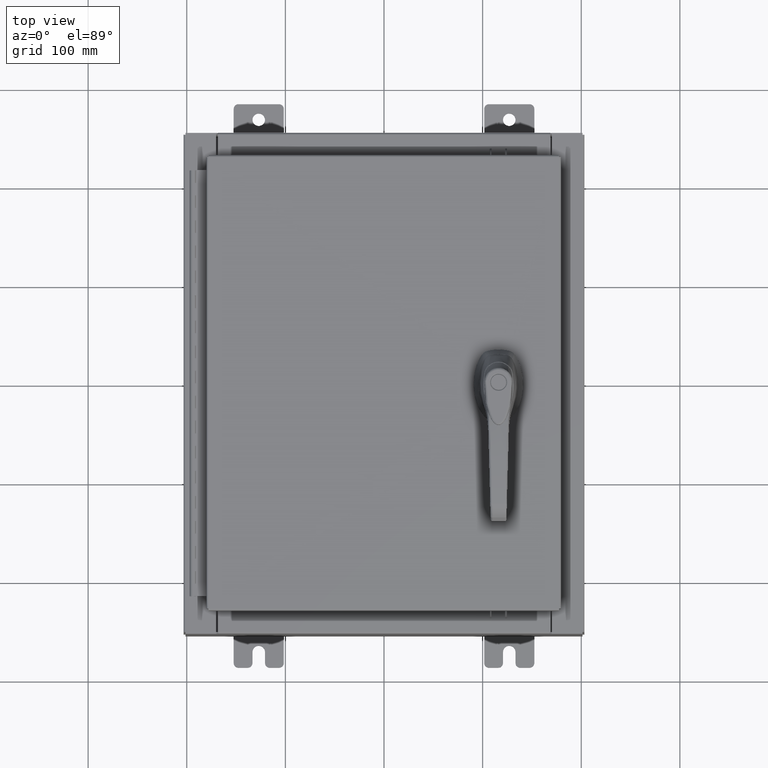
[diagram: clean part render]
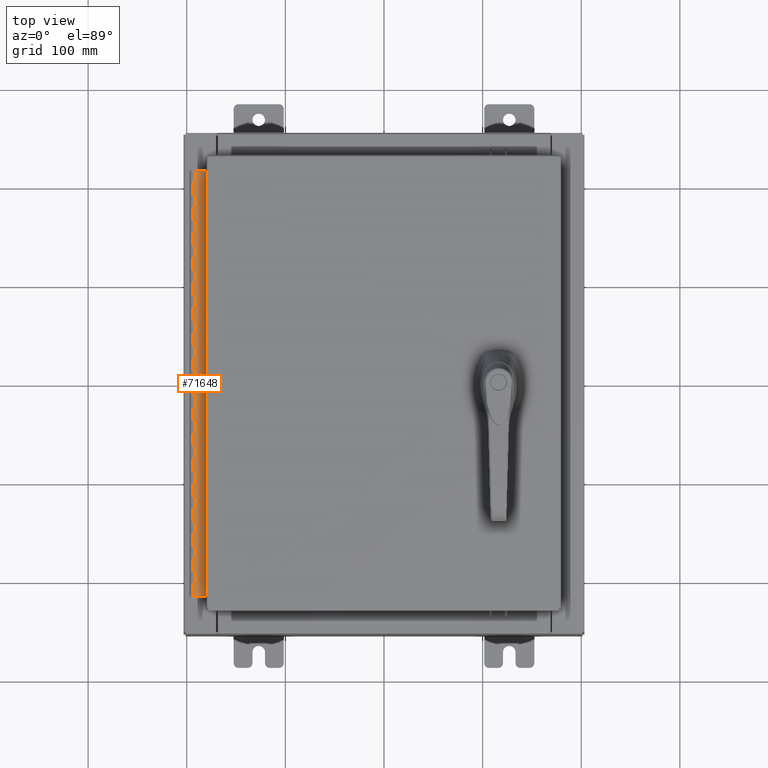
[diagram: same view with one face highlighted and labeled with its STEP entity id]
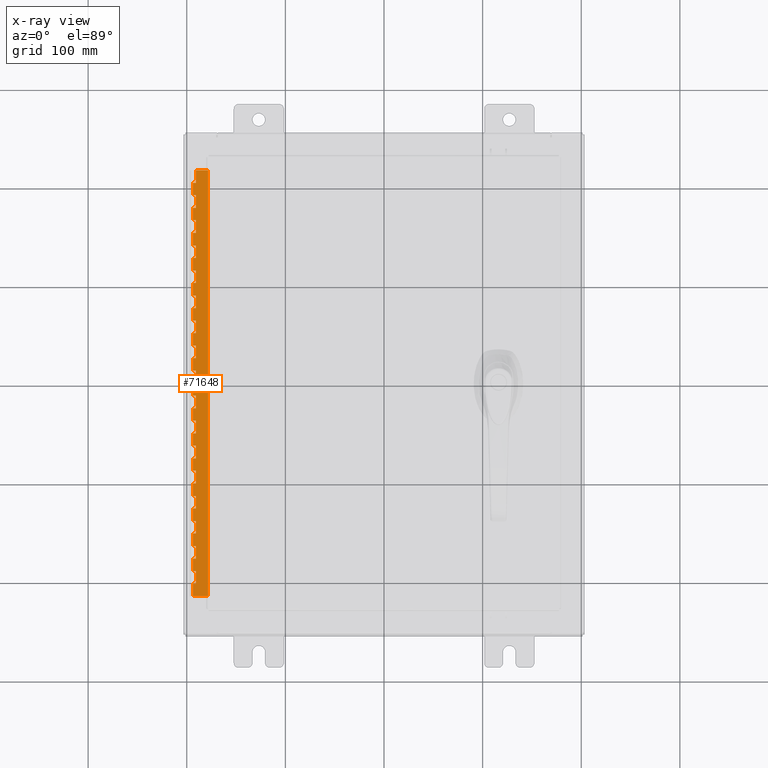
[diagram: x-ray of the same camera — body ghosted, the highlighted face saturated]
A machine part, top view. The second image highlights one B-rep face of the part: STEP entity #71648.
The next image is the same camera in x-ray: the body ghosted, the highlighted face saturated — about 0% of this face is hidden behind the body in this view.
In plain terms, the highlighted planar face has unit normal (-0, -0, 1).
Its self-contained STEP definition (entity closure, byte-faithful):
#47 = LINE ( 'NONE', #97177, #22506 ) ;
#52 = CARTESIAN_POINT ( 'NONE',  ( -0.6869999999999973900, 0.8004999999999995500, -16.00000000000000000 ) ) ;
#144 = LINE ( 'NONE', #7734, #81935 ) ;
#173 = EDGE_CURVE ( 'NONE', #30882, #21122, #80404, .T. ) ;
#182 = CARTESIAN_POINT ( 'NONE',  ( -0.6869999999999978300, 0.6754999999999996600, -17.00000000000000000 ) ) ;
#255 = VECTOR ( 'NONE', #53296, 39.37007874015748100 ) ;
#319 = CARTESIAN_POINT ( 'NONE',  ( -0.6869999999999973900, 0.8004999999999995500, -9.500000000000000000 ) ) ;
#684 = EDGE_CURVE ( 'NONE', #3069, #19853, #53909, .T. ) ;
#822 = VECTOR ( 'NONE', #3573, 39.37007874015748100 ) ;
#826 = LINE ( 'NONE', #46279, #105073 ) ;
#1057 = CARTESIAN_POINT ( 'NONE',  ( -0.6869999999999982800, 0.5504999999999997700, -9.000000000000000000 ) ) ;
#1175 = LINE ( 'NONE', #72460, #65784 ) ;
#1570 = DIRECTION ( 'NONE',  ( 0.0000000000000000000, -0.0000000000000000000, -1.000000000000000000 ) ) ;
#2057 = VERTEX_POINT ( 'NONE', #35083 ) ;
#2121 = EDGE_CURVE ( 'NONE', #48176, #21186, #80214, .T. ) ;
#2126 = VECTOR ( 'NONE', #15982, 39.37007874015748100 ) ;
#2927 = DIRECTION ( 'NONE',  ( -3.389037039080723100E-015, -1.000000000000000000, 0.0000000000000000000 ) ) ;
#3069 = VERTEX_POINT ( 'NONE', #93607 ) ;
#3105 = ORIENTED_EDGE ( 'NONE', *, *, #37503, .F. ) ;
#3153 = VERTEX_POINT ( 'NONE', #35682 ) ;
#3228 = VECTOR ( 'NONE', #17721, 39.37007874015748100 ) ;
#3507 = CARTESIAN_POINT ( 'NONE',  ( -0.6869999999999978300, 0.6754999999999996600, -17.00000000000000000 ) ) ;
#3534 = DIRECTION ( 'NONE',  ( -3.389037039080723100E-015, -1.000000000000000000, 0.0000000000000000000 ) ) ;
#3573 = DIRECTION ( 'NONE',  ( 3.389037039080723100E-015, 1.000000000000000000, -0.0000000000000000000 ) ) ;
#4205 = DIRECTION ( 'NONE',  ( 0.0000000000000000000, 0.0000000000000000000, 1.000000000000000000 ) ) ;
#4481 = VERTEX_POINT ( 'NONE', #25479 ) ;
#5023 = ORIENTED_EDGE ( 'NONE', *, *, #55852, .F. ) ;
#5039 = VERTEX_POINT ( 'NONE', #100743 ) ;
#5045 = CARTESIAN_POINT ( 'NONE',  ( -0.6869999999999982800, 0.5504999999999997700, -10.50000000000000000 ) ) ;
#5246 = DIRECTION ( 'NONE',  ( 0.0000000000000000000, 0.0000000000000000000, 1.000000000000000000 ) ) ;
#5381 = CARTESIAN_POINT ( 'NONE',  ( -0.6869999999999982800, 0.5504999999999997700, -10.00000000000000000 ) ) ;
#5386 = EDGE_CURVE ( 'NONE', #25312, #22837, #53398, .T. ) ;
#5557 = VERTEX_POINT ( 'NONE', #91435 ) ;
#5804 = EDGE_CURVE ( 'NONE', #65741, #2057, #59946, .T. ) ;
#5836 = VECTOR ( 'NONE', #39153, 39.37007874015748100 ) ;
#5842 = LINE ( 'NONE', #51197, #3228 ) ;
#5902 = ORIENTED_EDGE ( 'NONE', *, *, #67990, .F. ) ;
#5998 = VERTEX_POINT ( 'NONE', #47102 ) ;
#6112 = LINE ( 'NONE', #71001, #822 ) ;
#6223 = LINE ( 'NONE', #3507, #93307 ) ;
#6224 = CARTESIAN_POINT ( 'NONE',  ( -0.6869999999999982800, 0.5504999999999997700, -11.50000000000000000 ) ) ;
#6429 = CARTESIAN_POINT ( 'NONE',  ( -0.6869999999999982800, 0.5504999999999997700, -2.000000000000000000 ) ) ;
#6629 = ORIENTED_EDGE ( 'NONE', *, *, #81378, .F. ) ;
#6748 = CARTESIAN_POINT ( 'NONE',  ( -0.6869999999999978300, 0.6754999999999996600, -5.500000000000000000 ) ) ;
#6836 = ORIENTED_EDGE ( 'NONE', *, *, #69578, .F. ) ;
#7418 = CARTESIAN_POINT ( 'NONE',  ( -0.6869999999999982800, 0.5504999999999997700, -8.000000000000000000 ) ) ;
#7476 = CARTESIAN_POINT ( 'NONE',  ( -0.6869999999999978300, 0.6754999999999996600, -17.00000000000000000 ) ) ;
#7521 = CARTESIAN_POINT ( 'NONE',  ( -0.6869999999999982800, 0.5504999999999997700, -2.500000000000000000 ) ) ;
#7583 = ORIENTED_EDGE ( 'NONE', *, *, #22789, .T. ) ;
#7734 = CARTESIAN_POINT ( 'NONE',  ( -0.6869999999999978300, 0.6754999999999996600, -17.00000000000000000 ) ) ;
#7920 = LINE ( 'NONE', #94806, #30362 ) ;
#7979 = VERTEX_POINT ( 'NONE', #46559 ) ;
#7988 = VECTOR ( 'NONE', #23017, 39.37007874015748100 ) ;
#8086 = CARTESIAN_POINT ( 'NONE',  ( -0.6869999999999973900, 0.8004999999999995500, -4.000000000000000000 ) ) ;
#8297 = VECTOR ( 'NONE', #78502, 39.37007874015748100 ) ;
#8391 = CARTESIAN_POINT ( 'NONE',  ( -0.6869999999999973900, 0.8004999999999995500, -2.500000000000000000 ) ) ;
#8474 = LINE ( 'NONE', #11161, #92892 ) ;
#8556 = DIRECTION ( 'NONE',  ( 3.389037039080723100E-015, 1.000000000000000000, -0.0000000000000000000 ) ) ;
#8589 = ORIENTED_EDGE ( 'NONE', *, *, #86606, .F. ) ;
#8602 = LINE ( 'NONE', #22561, #93021 ) ;
#8695 = DIRECTION ( 'NONE',  ( 0.0000000000000000000, 0.0000000000000000000, 1.000000000000000000 ) ) ;
#9291 = LINE ( 'NONE', #73083, #73894 ) ;
#9358 = ORIENTED_EDGE ( 'NONE', *, *, #80774, .T. ) ;
#9398 = VECTOR ( 'NONE', #90669, 39.37007874015748100 ) ;
#10118 = ORIENTED_EDGE ( 'NONE', *, *, #684, .F. ) ;
#10228 = EDGE_CURVE ( 'NONE', #93503, #77988, #25179, .T. ) ;
#10332 = ORIENTED_EDGE ( 'NONE', *, *, #45067, .T. ) ;
#10361 = EDGE_CURVE ( 'NONE', #72711, #104111, #64711, .T. ) ;
#10604 = ORIENTED_EDGE ( 'NONE', *, *, #15381, .F. ) ;
#10657 = CARTESIAN_POINT ( 'NONE',  ( -0.6869999999999982800, 0.5504999999999997700, -10.50000000000000000 ) ) ;
#10686 = EDGE_CURVE ( 'NONE', #77988, #28669, #93768, .T. ) ;
#10761 = CARTESIAN_POINT ( 'NONE',  ( -0.6869999999999978300, 0.6754999999999996600, -6.499999999999999100 ) ) ;
#10994 = CARTESIAN_POINT ( 'NONE',  ( -0.6869999999999973900, 0.8004999999999995500, -2.000000000000000000 ) ) ;
#11161 = CARTESIAN_POINT ( 'NONE',  ( -0.6869999999999982800, 0.5504999999999997700, -1.499999999999999800 ) ) ;
#11277 = DIRECTION ( 'NONE',  ( 0.0000000000000000000, 0.0000000000000000000, 1.000000000000000000 ) ) ;
#11766 = VECTOR ( 'NONE', #29520, 39.37007874015748100 ) ;
#12119 = VERTEX_POINT ( 'NONE', #62263 ) ;
#12715 = EDGE_CURVE ( 'NONE', #12119, #20681, #1175, .T. ) ;
#12751 = VECTOR ( 'NONE', #65247, 39.37007874015748100 ) ;
#12788 = VERTEX_POINT ( 'NONE', #38906 ) ;
#12859 = VECTOR ( 'NONE', #44209, 39.37007874015748100 ) ;
#12912 = ORIENTED_EDGE ( 'NONE', *, *, #89480, .F. ) ;
#12917 = CARTESIAN_POINT ( 'NONE',  ( -0.6869999999999982800, 0.5504999999999997700, -0.5000000000000000000 ) ) ;
#12961 = VECTOR ( 'NONE', #26973, 39.37007874015748100 ) ;
#13172 = CARTESIAN_POINT ( 'NONE',  ( -0.6869999999999982800, 0.5504999999999997700, -0.5000000000000000000 ) ) ;
#13402 = DIRECTION ( 'NONE',  ( 0.0000000000000000000, -0.0000000000000000000, -1.000000000000000000 ) ) ;
#13533 = DIRECTION ( 'NONE',  ( 0.0000000000000000000, 0.0000000000000000000, 1.000000000000000000 ) ) ;
#13764 = EDGE_LOOP ( 'NONE', ( #25195, #69873, #58748, #15636, #65930, #68513, #78602, #18323, #50835, #64703, #52856, #68767, #10332, #25095, #19750, #33590, #104085, #88353, #71093, #78484, #82828, #8589, #67243, #10604, #68667, #97313, #50032, #6629, #36163, #103973, #65700, #51155, #103437, #85385, #88916, #6836, #55307, #30547, #3105, #49933, #66126, #83558, #64272, #5023, #31310, #18943, #45724, #94066, #9358, #36971, #5902, #72891, #32704, #71349, #49995, #66800, #7583, #58892, #43885, #68204, #29351, #56718, #42104, #98160, #30612, #12912, #20476, #77652, #72016, #10118 ) ) ;
#14431 = CARTESIAN_POINT ( 'NONE',  ( -0.6869999999999973900, 0.8004999999999995500, -6.499999999999999100 ) ) ;
#15049 = VERTEX_POINT ( 'NONE', #68794 ) ;
#15192 = EDGE_CURVE ( 'NONE', #30882, #7979, #45150, .T. ) ;
#15302 = VERTEX_POINT ( 'NONE', #5045 ) ;
#15381 = EDGE_CURVE ( 'NONE', #4481, #5039, #87411, .T. ) ;
#15458 = VECTOR ( 'NONE', #50781, 39.37007874015748100 ) ;
#15636 = ORIENTED_EDGE ( 'NONE', *, *, #23797, .F. ) ;
#15982 = DIRECTION ( 'NONE',  ( 0.0000000000000000000, -0.0000000000000000000, -1.000000000000000000 ) ) ;
#16253 = CARTESIAN_POINT ( 'NONE',  ( -0.6869999999999982800, 0.5504999999999997700, -7.000000000000000000 ) ) ;
#16584 = DIRECTION ( 'NONE',  ( 3.389037039080723100E-015, 1.000000000000000000, -0.0000000000000000000 ) ) ;
#16638 = LINE ( 'NONE', #42286, #78632 ) ;
#16925 = VERTEX_POINT ( 'NONE', #87316 ) ;
#17016 = VECTOR ( 'NONE', #24383, 39.37007874015748100 ) ;
#17649 = CARTESIAN_POINT ( 'NONE',  ( -0.6869999999999973900, 0.8004999999999995500, -0.5000000000000000000 ) ) ;
#17721 = DIRECTION ( 'NONE',  ( 3.389037039080723100E-015, 1.000000000000000000, -0.0000000000000000000 ) ) ;
#17893 = VECTOR ( 'NONE', #72261, 39.37007874015748100 ) ;
#18026 = VECTOR ( 'NONE', #58986, 39.37007874015748100 ) ;
#18227 = VERTEX_POINT ( 'NONE', #42329 ) ;
#18276 = EDGE_CURVE ( 'NONE', #33599, #42919, #39488, .T. ) ;
#18304 = CARTESIAN_POINT ( 'NONE',  ( -0.6869999999999973900, 0.8004999999999995500, -4.500000000000000000 ) ) ;
#18323 = ORIENTED_EDGE ( 'NONE', *, *, #10228, .F. ) ;
#18372 = LINE ( 'NONE', #10657, #57871 ) ;
#18943 = ORIENTED_EDGE ( 'NONE', *, *, #59524, .F. ) ;
#19172 = VERTEX_POINT ( 'NONE', #22587 ) ;
#19380 = EDGE_CURVE ( 'NONE', #33140, #15049, #56515, .T. ) ;
#19481 = DIRECTION ( 'NONE',  ( 3.389037039080723100E-015, 1.000000000000000000, -0.0000000000000000000 ) ) ;
#19665 = CARTESIAN_POINT ( 'NONE',  ( -0.6870000000000022800, -0.6245000000000003900, -17.00000000000000000 ) ) ;
#19750 = ORIENTED_EDGE ( 'NONE', *, *, #68083, .F. ) ;
#19853 = VERTEX_POINT ( 'NONE', #37283 ) ;
#19994 = DIRECTION ( 'NONE',  ( 3.389037039080723100E-015, 1.000000000000000000, -0.0000000000000000000 ) ) ;
#20004 = VECTOR ( 'NONE', #104339, 39.37007874015748100 ) ;
#20301 = CARTESIAN_POINT ( 'NONE',  ( -0.6869999999999978300, 0.6754999999999996600, -2.500000000000000000 ) ) ;
#20383 = CARTESIAN_POINT ( 'NONE',  ( -0.6869999999999982800, 0.5504999999999997700, -9.500000000000000000 ) ) ;
#20476 = ORIENTED_EDGE ( 'NONE', *, *, #81553, .F. ) ;
#20681 = VERTEX_POINT ( 'NONE', #82590 ) ;
#20814 = VECTOR ( 'NONE', #13402, 39.37007874015748100 ) ;
#20863 = CARTESIAN_POINT ( 'NONE',  ( -0.6869999999999978300, 0.6754999999999996600, -17.00000000000000000 ) ) ;
#21026 = CARTESIAN_POINT ( 'NONE',  ( -0.6869999999999982800, 0.5504999999999997700, -13.50000000000000000 ) ) ;
#21122 = VERTEX_POINT ( 'NONE', #29105 ) ;
#21186 = VERTEX_POINT ( 'NONE', #29462 ) ;
#21332 = CARTESIAN_POINT ( 'NONE',  ( -0.6869999999999982800, 0.5504999999999997700, -5.500000000000000000 ) ) ;
#21537 = EDGE_CURVE ( 'NONE', #86420, #15049, #89511, .T. ) ;
#22213 = VECTOR ( 'NONE', #30794, 39.37007874015748100 ) ;
#22506 = VECTOR ( 'NONE', #55093, 39.37007874015748100 ) ;
#22561 = CARTESIAN_POINT ( 'NONE',  ( -0.6869999999999982800, 0.5504999999999997700, -12.49999999999999800 ) ) ;
#22587 = CARTESIAN_POINT ( 'NONE',  ( -0.6869999999999982800, 0.5504999999999997700, -7.499999999999999100 ) ) ;
#22766 = CARTESIAN_POINT ( 'NONE',  ( -0.6869999999999982800, 0.5504999999999997700, -11.00000000000000000 ) ) ;
#22789 = EDGE_CURVE ( 'NONE', #88178, #2057, #6223, .T. ) ;
#22837 = VERTEX_POINT ( 'NONE', #80179 ) ;
#23017 = DIRECTION ( 'NONE',  ( 3.389037039080723100E-015, 1.000000000000000000, -0.0000000000000000000 ) ) ;
#23062 = LINE ( 'NONE', #31346, #62625 ) ;
#23258 = EDGE_CURVE ( 'NONE', #81604, #50422, #29976, .T. ) ;
#23556 = VECTOR ( 'NONE', #106366, 39.37007874015748100 ) ;
#23797 = EDGE_CURVE ( 'NONE', #106908, #18227, #826, .T. ) ;
#24078 = EDGE_CURVE ( 'NONE', #46515, #65741, #69376, .T. ) ;
#24151 = VERTEX_POINT ( 'NONE', #31302 ) ;
#24383 = DIRECTION ( 'NONE',  ( 0.0000000000000000000, 0.0000000000000000000, 1.000000000000000000 ) ) ;
#24706 = EDGE_CURVE ( 'NONE', #104111, #97224, #42931, .T. ) ;
#25095 = ORIENTED_EDGE ( 'NONE', *, *, #37226, .F. ) ;
#25179 = LINE ( 'NONE', #44276, #67347 ) ;
#25195 = ORIENTED_EDGE ( 'NONE', *, *, #41804, .F. ) ;
#25312 = VERTEX_POINT ( 'NONE', #16253 ) ;
#25415 = LINE ( 'NONE', #70357, #70259 ) ;
#25451 = VECTOR ( 'NONE', #73379, 39.37007874015748100 ) ;
#25469 = VERTEX_POINT ( 'NONE', #22766 ) ;
#25479 = CARTESIAN_POINT ( 'NONE',  ( -0.6869999999999978300, 0.6754999999999996600, -11.50000000000000000 ) ) ;
#25702 = VECTOR ( 'NONE', #102689, 39.37007874015748100 ) ;
#25745 = LINE ( 'NONE', #19665, #85105 ) ;
#25972 = VERTEX_POINT ( 'NONE', #79120 ) ;
#26018 = CARTESIAN_POINT ( 'NONE',  ( -0.6869999999999982800, 0.5504999999999997700, -17.00000000000000000 ) ) ;
#26100 = CARTESIAN_POINT ( 'NONE',  ( -0.6869999999999973900, 0.8004999999999995500, -2.999999999999999600 ) ) ;
#26111 = DIRECTION ( 'NONE',  ( -3.389037039080723100E-015, -1.000000000000000000, 0.0000000000000000000 ) ) ;
#26973 = DIRECTION ( 'NONE',  ( -3.389037039080723100E-015, -1.000000000000000000, 0.0000000000000000000 ) ) ;
#27203 = EDGE_CURVE ( 'NONE', #90378, #65578, #80937, .T. ) ;
#27323 = LINE ( 'NONE', #73043, #49700 ) ;
#27341 = DIRECTION ( 'NONE',  ( -3.389037039080723100E-015, -1.000000000000000000, 0.0000000000000000000 ) ) ;
#27475 = CARTESIAN_POINT ( 'NONE',  ( -0.6869999999999982800, 0.5504999999999997700, -14.00000000000000000 ) ) ;
#27922 = LINE ( 'NONE', #70393, #20004 ) ;
#28084 = CARTESIAN_POINT ( 'NONE',  ( -0.6869999999999973900, 0.8004999999999995500, -5.000000000000000000 ) ) ;
#28137 = EDGE_CURVE ( 'NONE', #21186, #63202, #36151, .T. ) ;
#28309 = CARTESIAN_POINT ( 'NONE',  ( -0.6869999999999978300, 0.6754999999999996600, -17.00000000000000000 ) ) ;
#28669 = VERTEX_POINT ( 'NONE', #107087 ) ;
#29105 = CARTESIAN_POINT ( 'NONE',  ( -0.6869999999999978300, 0.6754999999999996600, -1.000000000000000000 ) ) ;
#29148 = EDGE_CURVE ( 'NONE', #58069, #25972, #95421, .T. ) ;
#29351 = ORIENTED_EDGE ( 'NONE', *, *, #27203, .T. ) ;
#29358 = DIRECTION ( 'NONE',  ( 0.0000000000000000000, 0.0000000000000000000, 1.000000000000000000 ) ) ;
#29462 = CARTESIAN_POINT ( 'NONE',  ( -0.6869999999999982800, 0.5504999999999997700, -5.500000000000000000 ) ) ;
#29520 = DIRECTION ( 'NONE',  ( 3.369016658928398200E-015, 1.000000000000000000, 0.0000000000000000000 ) ) ;
#29740 = CARTESIAN_POINT ( 'NONE',  ( -0.6869999999999978300, 0.6754999999999996600, -4.500000000000000000 ) ) ;
#29976 = LINE ( 'NONE', #28084, #12859 ) ;
#30362 = VECTOR ( 'NONE', #27341, 39.37007874015748100 ) ;
#30547 = ORIENTED_EDGE ( 'NONE', *, *, #21537, .F. ) ;
#30612 = ORIENTED_EDGE ( 'NONE', *, *, #173, .T. ) ;
#30794 = DIRECTION ( 'NONE',  ( 3.389037039080723100E-015, 1.000000000000000000, -0.0000000000000000000 ) ) ;
#30863 = VECTOR ( 'NONE', #71803, 39.37007874015748100 ) ;
#30882 = VERTEX_POINT ( 'NONE', #44649 ) ;
#31000 = VECTOR ( 'NONE', #19994, 39.37007874015748100 ) ;
#31302 = CARTESIAN_POINT ( 'NONE',  ( -0.6869999999999978300, 0.6754999999999996600, -14.00000000000000000 ) ) ;
#31310 = ORIENTED_EDGE ( 'NONE', *, *, #96489, .T. ) ;
#31321 = EDGE_CURVE ( 'NONE', #5039, #82481, #81946, .T. ) ;
#31346 = CARTESIAN_POINT ( 'NONE',  ( -0.6869999999999973900, 0.8004999999999995500, -10.00000000000000000 ) ) ;
#32252 = VECTOR ( 'NONE', #3534, 39.37007874015748100 ) ;
#32557 = CARTESIAN_POINT ( 'NONE',  ( -0.6869999999999978300, 0.6754999999999996600, -13.50000000000000000 ) ) ;
#32662 = DIRECTION ( 'NONE',  ( 0.0000000000000000000, 0.0000000000000000000, 1.000000000000000000 ) ) ;
#32704 = ORIENTED_EDGE ( 'NONE', *, *, #42608, .T. ) ;
#32847 = VECTOR ( 'NONE', #32662, 39.37007874015748100 ) ;
#33140 = VERTEX_POINT ( 'NONE', #84906 ) ;
#33590 = ORIENTED_EDGE ( 'NONE', *, *, #73956, .F. ) ;
#33599 = VERTEX_POINT ( 'NONE', #62603 ) ;
#33988 = DIRECTION ( 'NONE',  ( 0.0000000000000000000, 0.0000000000000000000, 1.000000000000000000 ) ) ;
#33997 = CARTESIAN_POINT ( 'NONE',  ( -0.6869999999999982800, 0.5504999999999997700, -6.000000000000000900 ) ) ;
#34007 = VERTEX_POINT ( 'NONE', #26018 ) ;
#34013 = FACE_OUTER_BOUND ( 'NONE', #13764, .T. ) ;
#34538 = VECTOR ( 'NONE', #38938, 39.37007874015748100 ) ;
#34604 = DIRECTION ( 'NONE',  ( 0.0000000000000000000, 0.0000000000000000000, 1.000000000000000000 ) ) ;
#34965 = VECTOR ( 'NONE', #38220, 39.37007874015748100 ) ;
#35083 = CARTESIAN_POINT ( 'NONE',  ( -0.6869999999999978300, 0.6754999999999996600, -2.999999999999999600 ) ) ;
#35428 = CARTESIAN_POINT ( 'NONE',  ( -0.6869999999999982800, 0.5504999999999997700, -11.99999999999999800 ) ) ;
#35682 = CARTESIAN_POINT ( 'NONE',  ( -0.6869999999999978300, 0.6754999999999996600, -6.000000000000000900 ) ) ;
#36151 = LINE ( 'NONE', #21332, #30863 ) ;
#36163 = ORIENTED_EDGE ( 'NONE', *, *, #56972, .T. ) ;
#36411 = CARTESIAN_POINT ( 'NONE',  ( -0.6869999999999982800, 0.5504999999999997700, -1.000000000000000000 ) ) ;
#36506 = VECTOR ( 'NONE', #58849, 39.37007874015748100 ) ;
#36532 = EDGE_CURVE ( 'NONE', #16925, #19172, #62924, .T. ) ;
#36971 = ORIENTED_EDGE ( 'NONE', *, *, #23258, .F. ) ;
#36989 = EDGE_CURVE ( 'NONE', #90378, #46515, #58865, .T. ) ;
#37226 = EDGE_CURVE ( 'NONE', #99000, #24151, #6112, .T. ) ;
#37229 = CARTESIAN_POINT ( 'NONE',  ( -0.6869999999999978300, 0.6754999999999996600, -10.50000000000000000 ) ) ;
#37283 = CARTESIAN_POINT ( 'NONE',  ( -0.6869999999999978300, 0.6754999999999996600, 0.0000000000000000000 ) ) ;
#37503 = EDGE_CURVE ( 'NONE', #19172, #86420, #60152, .T. ) ;
#37781 = VECTOR ( 'NONE', #73539, 39.37007874015748100 ) ;
#37807 = LINE ( 'NONE', #67457, #18026 ) ;
#38220 = DIRECTION ( 'NONE',  ( 3.389037039080723100E-015, 1.000000000000000000, -0.0000000000000000000 ) ) ;
#38873 = CARTESIAN_POINT ( 'NONE',  ( -0.6869999999999982800, 0.5504999999999997700, -6.499999999999999100 ) ) ;
#38906 = CARTESIAN_POINT ( 'NONE',  ( -0.6869999999999978300, 0.6754999999999996600, -10.00000000000000000 ) ) ;
#38938 = DIRECTION ( 'NONE',  ( 0.0000000000000000000, 0.0000000000000000000, 1.000000000000000000 ) ) ;
#39137 = DIRECTION ( 'NONE',  ( 0.0000000000000000000, -0.0000000000000000000, -1.000000000000000000 ) ) ;
#39151 = VERTEX_POINT ( 'NONE', #6429 ) ;
#39153 = DIRECTION ( 'NONE',  ( 0.0000000000000000000, 0.0000000000000000000, 1.000000000000000000 ) ) ;
#39488 = LINE ( 'NONE', #17649, #59276 ) ;
#39581 = EDGE_CURVE ( 'NONE', #63140, #40785, #40274, .T. ) ;
#39631 = CARTESIAN_POINT ( 'NONE',  ( -0.6869999999999973900, 0.8004999999999995500, -11.50000000000000000 ) ) ;
#39637 = VECTOR ( 'NONE', #95524, 39.37007874015748100 ) ;
#39824 = CARTESIAN_POINT ( 'NONE',  ( -0.6869999999999982800, 0.5504999999999997700, -7.499999999999999100 ) ) ;
#40274 = LINE ( 'NONE', #63149, #104973 ) ;
#40275 = LINE ( 'NONE', #48092, #78767 ) ;
#40356 = LINE ( 'NONE', #47762, #37781 ) ;
#40785 = VERTEX_POINT ( 'NONE', #54469 ) ;
#40796 = CARTESIAN_POINT ( 'NONE',  ( -0.6869999999999978300, 0.6754999999999996600, -14.49999999999999800 ) ) ;
#41145 = DIRECTION ( 'NONE',  ( 3.369016658928398200E-015, 1.000000000000000000, 0.0000000000000000000 ) ) ;
#41804 = EDGE_CURVE ( 'NONE', #95310, #3069, #59579, .T. ) ;
#42005 = CARTESIAN_POINT ( 'NONE',  ( -0.6869999999999978300, 0.6754999999999996600, -17.00000000000000000 ) ) ;
#42104 = ORIENTED_EDGE ( 'NONE', *, *, #52679, .F. ) ;
#42286 = CARTESIAN_POINT ( 'NONE',  ( -0.6869999999999973900, 0.8004999999999995500, -10.50000000000000000 ) ) ;
#42329 = CARTESIAN_POINT ( 'NONE',  ( -0.6869999999999982800, 0.5504999999999997700, -16.50000000000000000 ) ) ;
#42482 = LINE ( 'NONE', #28309, #67529 ) ;
#42608 = EDGE_CURVE ( 'NONE', #91255, #102024, #144, .T. ) ;
#42634 = EDGE_CURVE ( 'NONE', #72040, #102024, #64764, .T. ) ;
#42789 = CARTESIAN_POINT ( 'NONE',  ( -0.6869999999999973900, 0.8004999999999995500, -6.000000000000000900 ) ) ;
#42849 = LINE ( 'NONE', #14431, #87785 ) ;
#42919 = VERTEX_POINT ( 'NONE', #12917 ) ;
#42931 = LINE ( 'NONE', #47196, #17893 ) ;
#42944 = VECTOR ( 'NONE', #72102, 39.37007874015748100 ) ;
#43054 = DIRECTION ( 'NONE',  ( 3.389037039080723100E-015, 1.000000000000000000, -0.0000000000000000000 ) ) ;
#43193 = LINE ( 'NONE', #94639, #20814 ) ;
#43432 = EDGE_CURVE ( 'NONE', #80315, #58069, #47, .T. ) ;
#43447 = VECTOR ( 'NONE', #59286, 39.37007874015748100 ) ;
#43621 = LINE ( 'NONE', #52, #63389 ) ;
#43885 = ORIENTED_EDGE ( 'NONE', *, *, #24078, .F. ) ;
#44035 = CARTESIAN_POINT ( 'NONE',  ( -0.6869999999999982800, 0.5504999999999997700, -12.49999999999999800 ) ) ;
#44209 = DIRECTION ( 'NONE',  ( 3.389037039080723100E-015, 1.000000000000000000, -0.0000000000000000000 ) ) ;
#44276 = CARTESIAN_POINT ( 'NONE',  ( -0.6869999999999973900, 0.8004999999999995500, -15.50000000000000000 ) ) ;
#44288 = LINE ( 'NONE', #55920, #61402 ) ;
#44649 = CARTESIAN_POINT ( 'NONE',  ( -0.6869999999999978300, 0.6754999999999996600, -1.499999999999999800 ) ) ;
#45067 = EDGE_CURVE ( 'NONE', #87020, #24151, #57898, .T. ) ;
#45150 = LINE ( 'NONE', #103833, #255 ) ;
#45369 = CARTESIAN_POINT ( 'NONE',  ( -0.6869999999999978300, 0.6754999999999996600, -9.500000000000000000 ) ) ;
#45387 = LINE ( 'NONE', #10994, #62498 ) ;
#45724 = ORIENTED_EDGE ( 'NONE', *, *, #28137, .F. ) ;
#46279 = CARTESIAN_POINT ( 'NONE',  ( -0.6869999999999973900, 0.8004999999999995500, -16.50000000000000000 ) ) ;
#46450 = CARTESIAN_POINT ( 'NONE',  ( -0.6869999999999978300, 0.6754999999999996600, -5.000000000000000000 ) ) ;
#46515 = VERTEX_POINT ( 'NONE', #84161 ) ;
#46559 = CARTESIAN_POINT ( 'NONE',  ( -0.6869999999999982800, 0.5504999999999997700, -1.499999999999999800 ) ) ;
#46693 = CARTESIAN_POINT ( 'NONE',  ( -0.6869999999999973900, 0.8004999999999995500, -12.99999999999999800 ) ) ;
#47102 = CARTESIAN_POINT ( 'NONE',  ( -0.6869999999999978300, 0.6754999999999996600, -11.00000000000000000 ) ) ;
#47196 = CARTESIAN_POINT ( 'NONE',  ( -0.6869999999999973900, 0.8004999999999995500, -9.000000000000000000 ) ) ;
#47536 = AXIS2_PLACEMENT_3D ( 'NONE', #99412, #91686, #41145 ) ;
#47657 = DIRECTION ( 'NONE',  ( 0.0000000000000000000, 0.0000000000000000000, 1.000000000000000000 ) ) ;
#47762 = CARTESIAN_POINT ( 'NONE',  ( -0.6869999999999973900, 0.8004999999999995500, -13.50000000000000000 ) ) ;
#48092 = CARTESIAN_POINT ( 'NONE',  ( -0.6869999999999982800, 0.5504999999999997700, -16.50000000000000000 ) ) ;
#48176 = VERTEX_POINT ( 'NONE', #6748 ) ;
#48865 = VECTOR ( 'NONE', #74392, 39.37007874015748100 ) ;
#48965 = CARTESIAN_POINT ( 'NONE',  ( -0.6869999999999982800, 0.5504999999999997700, -15.50000000000000000 ) ) ;
#49171 = VERTEX_POINT ( 'NONE', #5381 ) ;
#49207 = DIRECTION ( 'NONE',  ( -3.389037039080723100E-015, -1.000000000000000000, 0.0000000000000000000 ) ) ;
#49275 = VECTOR ( 'NONE', #67406, 39.37007874015748100 ) ;
#49363 = LINE ( 'NONE', #54003, #32252 ) ;
#49700 = VECTOR ( 'NONE', #5246, 39.37007874015748100 ) ;
#49933 = ORIENTED_EDGE ( 'NONE', *, *, #36532, .F. ) ;
#49995 = ORIENTED_EDGE ( 'NONE', *, *, #100811, .F. ) ;
#50032 = ORIENTED_EDGE ( 'NONE', *, *, #64073, .F. ) ;
#50422 = VERTEX_POINT ( 'NONE', #46450 ) ;
#50450 = LINE ( 'NONE', #69992, #8297 ) ;
#50781 = DIRECTION ( 'NONE',  ( -3.389037039080723100E-015, -1.000000000000000000, 0.0000000000000000000 ) ) ;
#50835 = ORIENTED_EDGE ( 'NONE', *, *, #55060, .T. ) ;
#50885 = VERTEX_POINT ( 'NONE', #95700 ) ;
#51155 = ORIENTED_EDGE ( 'NONE', *, *, #104025, .F. ) ;
#51197 = CARTESIAN_POINT ( 'NONE',  ( -0.6869999999999973900, 0.8004999999999995500, -11.00000000000000000 ) ) ;
#52176 = EDGE_CURVE ( 'NONE', #12119, #100589, #49363, .T. ) ;
#52679 = EDGE_CURVE ( 'NONE', #7979, #39151, #8474, .T. ) ;
#52856 = ORIENTED_EDGE ( 'NONE', *, *, #43432, .F. ) ;
#53296 = DIRECTION ( 'NONE',  ( -3.389037039080723100E-015, -1.000000000000000000, 0.0000000000000000000 ) ) ;
#53398 = LINE ( 'NONE', #53479, #31000 ) ;
#53479 = CARTESIAN_POINT ( 'NONE',  ( -0.6869999999999973900, 0.8004999999999995500, -7.000000000000000000 ) ) ;
#53909 = LINE ( 'NONE', #88536, #11766 ) ;
#54003 = CARTESIAN_POINT ( 'NONE',  ( -0.6869999999999973900, 0.8004999999999995500, -12.49999999999999800 ) ) ;
#54469 = CARTESIAN_POINT ( 'NONE',  ( -0.6869999999999978300, 0.6754999999999996600, -12.99999999999999800 ) ) ;
#54718 = DIRECTION ( 'NONE',  ( -3.389037039080723100E-015, -1.000000000000000000, 0.0000000000000000000 ) ) ;
#54798 = VECTOR ( 'NONE', #29358, 39.37007874015748100 ) ;
#55060 = EDGE_CURVE ( 'NONE', #93503, #25972, #79905, .T. ) ;
#55093 = DIRECTION ( 'NONE',  ( 0.0000000000000000000, -0.0000000000000000000, -1.000000000000000000 ) ) ;
#55307 = ORIENTED_EDGE ( 'NONE', *, *, #19380, .T. ) ;
#55452 = LINE ( 'NONE', #81986, #7988 ) ;
#55740 = VECTOR ( 'NONE', #93327, 39.37007874015748100 ) ;
#55852 = EDGE_CURVE ( 'NONE', #83975, #102163, #42849, .T. ) ;
#55868 = EDGE_CURVE ( 'NONE', #49171, #12788, #23062, .T. ) ;
#55920 = CARTESIAN_POINT ( 'NONE',  ( -0.6869999999999978300, 0.6754999999999996600, -17.00000000000000000 ) ) ;
#56515 = LINE ( 'NONE', #7476, #17016 ) ;
#56552 = DIRECTION ( 'NONE',  ( 0.0000000000000000000, -0.0000000000000000000, -1.000000000000000000 ) ) ;
#56718 = ORIENTED_EDGE ( 'NONE', *, *, #76557, .F. ) ;
#56972 = EDGE_CURVE ( 'NONE', #86699, #12788, #99452, .T. ) ;
#57308 = VECTOR ( 'NONE', #43054, 39.37007874015748100 ) ;
#57723 = CARTESIAN_POINT ( 'NONE',  ( -0.6869999999999978300, 0.6754999999999996600, -17.00000000000000000 ) ) ;
#57861 = CARTESIAN_POINT ( 'NONE',  ( -0.6869999999999982800, 0.5504999999999997700, -15.50000000000000000 ) ) ;
#57871 = VECTOR ( 'NONE', #103526, 39.37007874015748100 ) ;
#57898 = LINE ( 'NONE', #57723, #32847 ) ;
#58069 = VERTEX_POINT ( 'NONE', #89754 ) ;
#58192 = DIRECTION ( 'NONE',  ( 0.0000000000000000000, 0.0000000000000000000, 1.000000000000000000 ) ) ;
#58748 = ORIENTED_EDGE ( 'NONE', *, *, #81715, .F. ) ;
#58849 = DIRECTION ( 'NONE',  ( -3.389037039080723100E-015, -1.000000000000000000, 0.0000000000000000000 ) ) ;
#58865 = LINE ( 'NONE', #8391, #36506 ) ;
#58892 = ORIENTED_EDGE ( 'NONE', *, *, #5804, .F. ) ;
#58986 = DIRECTION ( 'NONE',  ( 0.0000000000000000000, 0.0000000000000000000, 1.000000000000000000 ) ) ;
#59276 = VECTOR ( 'NONE', #26111, 39.37007874015748100 ) ;
#59286 = DIRECTION ( 'NONE',  ( -3.389037039080723100E-015, -1.000000000000000000, 0.0000000000000000000 ) ) ;
#59487 = LINE ( 'NONE', #21026, #104408 ) ;
#59524 = EDGE_CURVE ( 'NONE', #63202, #3153, #100634, .T. ) ;
#59579 = LINE ( 'NONE', #97950, #34538 ) ;
#59946 = LINE ( 'NONE', #26100, #57308 ) ;
#60152 = LINE ( 'NONE', #39824, #12751 ) ;
#60209 = CARTESIAN_POINT ( 'NONE',  ( -0.6869999999999982800, 0.5504999999999997700, -4.500000000000000000 ) ) ;
#61064 = VERTEX_POINT ( 'NONE', #102796 ) ;
#61198 = DIRECTION ( 'NONE',  ( -3.389037039080723100E-015, -1.000000000000000000, 0.0000000000000000000 ) ) ;
#61402 = VECTOR ( 'NONE', #106844, 39.37007874015748100 ) ;
#62176 = EDGE_CURVE ( 'NONE', #28669, #95259, #43621, .T. ) ;
#62263 = CARTESIAN_POINT ( 'NONE',  ( -0.6869999999999978300, 0.6754999999999996600, -12.49999999999999800 ) ) ;
#62275 = VECTOR ( 'NONE', #1570, 39.37007874015748100 ) ;
#62498 = VECTOR ( 'NONE', #19481, 39.37007874015748100 ) ;
#62603 = CARTESIAN_POINT ( 'NONE',  ( -0.6869999999999978300, 0.6754999999999996600, -0.5000000000000000000 ) ) ;
#62625 = VECTOR ( 'NONE', #89999, 39.37007874015748100 ) ;
#62924 = LINE ( 'NONE', #101339, #15458 ) ;
#63017 = DIRECTION ( 'NONE',  ( 0.0000000000000000000, -0.0000000000000000000, -1.000000000000000000 ) ) ;
#63140 = VERTEX_POINT ( 'NONE', #32557 ) ;
#63149 = CARTESIAN_POINT ( 'NONE',  ( -0.6869999999999978300, 0.6754999999999996600, -17.00000000000000000 ) ) ;
#63202 = VERTEX_POINT ( 'NONE', #33997 ) ;
#63227 = LINE ( 'NONE', #319, #43447 ) ;
#63389 = VECTOR ( 'NONE', #8556, 39.37007874015748100 ) ;
#63527 = VECTOR ( 'NONE', #8695, 39.37007874015748100 ) ;
#64073 = EDGE_CURVE ( 'NONE', #15302, #25469, #18372, .T. ) ;
#64272 = ORIENTED_EDGE ( 'NONE', *, *, #104866, .F. ) ;
#64703 = ORIENTED_EDGE ( 'NONE', *, *, #29148, .F. ) ;
#64711 = LINE ( 'NONE', #103978, #39637 ) ;
#64764 = LINE ( 'NONE', #8086, #79343 ) ;
#64883 = CARTESIAN_POINT ( 'NONE',  ( -0.6869999999999973900, 0.8004999999999995500, -14.99999999999999800 ) ) ;
#65247 = DIRECTION ( 'NONE',  ( 0.0000000000000000000, -0.0000000000000000000, -1.000000000000000000 ) ) ;
#65578 = VERTEX_POINT ( 'NONE', #69692 ) ;
#65700 = ORIENTED_EDGE ( 'NONE', *, *, #92730, .F. ) ;
#65741 = VERTEX_POINT ( 'NONE', #108702 ) ;
#65784 = VECTOR ( 'NONE', #13533, 39.37007874015748100 ) ;
#65930 = ORIENTED_EDGE ( 'NONE', *, *, #101267, .T. ) ;
#66126 = ORIENTED_EDGE ( 'NONE', *, *, #109008, .T. ) ;
#66348 = CARTESIAN_POINT ( 'NONE',  ( -0.6869999999999982800, 0.5504999999999997700, -14.49999999999999800 ) ) ;
#66800 = ORIENTED_EDGE ( 'NONE', *, *, #86649, .F. ) ;
#66999 = EDGE_CURVE ( 'NONE', #82615, #97224, #42482, .T. ) ;
#67243 = ORIENTED_EDGE ( 'NONE', *, *, #31321, .F. ) ;
#67347 = VECTOR ( 'NONE', #61198, 39.37007874015748100 ) ;
#67406 = DIRECTION ( 'NONE',  ( 0.0000000000000000000, 0.0000000000000000000, 1.000000000000000000 ) ) ;
#67457 = CARTESIAN_POINT ( 'NONE',  ( -0.6869999999999978300, 0.6754999999999996600, -17.00000000000000000 ) ) ;
#67515 = CARTESIAN_POINT ( 'NONE',  ( -0.6869999999999978300, 0.6754999999999996600, -17.00000000000000000 ) ) ;
#67529 = VECTOR ( 'NONE', #78810, 39.37007874015748100 ) ;
#67990 = EDGE_CURVE ( 'NONE', #97480, #81604, #27922, .T. ) ;
#68083 = EDGE_CURVE ( 'NONE', #50885, #99000, #59487, .T. ) ;
#68204 = ORIENTED_EDGE ( 'NONE', *, *, #36989, .F. ) ;
#68492 = CARTESIAN_POINT ( 'NONE',  ( -0.6869999999999978300, 0.6754999999999996600, -17.00000000000000000 ) ) ;
#68513 = ORIENTED_EDGE ( 'NONE', *, *, #62176, .F. ) ;
#68667 = ORIENTED_EDGE ( 'NONE', *, *, #80112, .T. ) ;
#68767 = ORIENTED_EDGE ( 'NONE', *, *, #71545, .F. ) ;
#68794 = CARTESIAN_POINT ( 'NONE',  ( -0.6869999999999978300, 0.6754999999999996600, -8.000000000000000000 ) ) ;
#69104 = EDGE_CURVE ( 'NONE', #33599, #19853, #9291, .T. ) ;
#69169 = CARTESIAN_POINT ( 'NONE',  ( -0.6869999999999978300, 0.6754999999999996600, -16.50000000000000000 ) ) ;
#69376 = LINE ( 'NONE', #7521, #2126 ) ;
#69578 = EDGE_CURVE ( 'NONE', #33140, #72711, #7920, .T. ) ;
#69692 = CARTESIAN_POINT ( 'NONE',  ( -0.6869999999999978300, 0.6754999999999996600, -2.000000000000000000 ) ) ;
#69873 = ORIENTED_EDGE ( 'NONE', *, *, #95605, .T. ) ;
#69992 = CARTESIAN_POINT ( 'NONE',  ( -0.6869999999999973900, 0.8004999999999995500, -11.99999999999999800 ) ) ;
#70133 = DIRECTION ( 'NONE',  ( 3.369016658928398200E-015, 1.000000000000000000, 0.0000000000000000000 ) ) ;
#70257 = CARTESIAN_POINT ( 'NONE',  ( -0.6869999999999978300, 0.6754999999999996600, -16.00000000000000000 ) ) ;
#70259 = VECTOR ( 'NONE', #2927, 39.37007874015748100 ) ;
#70357 = CARTESIAN_POINT ( 'NONE',  ( -0.6869999999999973900, 0.8004999999999995500, -3.500000000000000000 ) ) ;
#70393 = CARTESIAN_POINT ( 'NONE',  ( -0.6869999999999982800, 0.5504999999999997700, -4.500000000000000000 ) ) ;
#71001 = CARTESIAN_POINT ( 'NONE',  ( -0.6869999999999973900, 0.8004999999999995500, -14.00000000000000000 ) ) ;
#71093 = ORIENTED_EDGE ( 'NONE', *, *, #108045, .F. ) ;
#71209 = CARTESIAN_POINT ( 'NONE',  ( -0.6869999999999978300, 0.6754999999999996600, -3.500000000000000000 ) ) ;
#71349 = ORIENTED_EDGE ( 'NONE', *, *, #42634, .F. ) ;
#71545 = EDGE_CURVE ( 'NONE', #87020, #80315, #89500, .T. ) ;
#71648 = ADVANCED_FACE ( 'NONE', ( #34013 ), #107894, .T. ) ;
#71803 = DIRECTION ( 'NONE',  ( 0.0000000000000000000, -0.0000000000000000000, -1.000000000000000000 ) ) ;
#72016 = ORIENTED_EDGE ( 'NONE', *, *, #69104, .T. ) ;
#72040 = VERTEX_POINT ( 'NONE', #97144 ) ;
#72102 = DIRECTION ( 'NONE',  ( 0.0000000000000000000, -0.0000000000000000000, -1.000000000000000000 ) ) ;
#72261 = DIRECTION ( 'NONE',  ( 3.389037039080723100E-015, 1.000000000000000000, -0.0000000000000000000 ) ) ;
#72460 = CARTESIAN_POINT ( 'NONE',  ( -0.6869999999999978300, 0.6754999999999996600, -17.00000000000000000 ) ) ;
#72711 = VERTEX_POINT ( 'NONE', #100694 ) ;
#72891 = ORIENTED_EDGE ( 'NONE', *, *, #77003, .F. ) ;
#73043 = CARTESIAN_POINT ( 'NONE',  ( -0.6869999999999978300, 0.6754999999999996600, -17.00000000000000000 ) ) ;
#73083 = CARTESIAN_POINT ( 'NONE',  ( -0.6869999999999978300, 0.6754999999999996600, -17.00000000000000000 ) ) ;
#73099 = LINE ( 'NONE', #81195, #5836 ) ;
#73232 = CARTESIAN_POINT ( 'NONE',  ( -0.6869999999999973900, 0.8004999999999995500, -14.49999999999999800 ) ) ;
#73379 = DIRECTION ( 'NONE',  ( 3.389037039080723100E-015, 1.000000000000000000, -0.0000000000000000000 ) ) ;
#73539 = DIRECTION ( 'NONE',  ( -3.389037039080723100E-015, -1.000000000000000000, 0.0000000000000000000 ) ) ;
#73894 = VECTOR ( 'NONE', #47657, 39.37007874015748100 ) ;
#73956 = EDGE_CURVE ( 'NONE', #63140, #50885, #40356, .T. ) ;
#74392 = DIRECTION ( 'NONE',  ( 0.0000000000000000000, -0.0000000000000000000, -1.000000000000000000 ) ) ;
#76557 = EDGE_CURVE ( 'NONE', #39151, #65578, #45387, .T. ) ;
#76822 = CARTESIAN_POINT ( 'NONE',  ( -0.6869999999999982800, 0.5504999999999997700, -6.499999999999999100 ) ) ;
#77003 = EDGE_CURVE ( 'NONE', #91255, #97480, #93005, .T. ) ;
#77652 = ORIENTED_EDGE ( 'NONE', *, *, #18276, .F. ) ;
#77737 = VERTEX_POINT ( 'NONE', #20383 ) ;
#77739 = VECTOR ( 'NONE', #33988, 39.37007874015748100 ) ;
#77988 = VERTEX_POINT ( 'NONE', #57861 ) ;
#78484 = ORIENTED_EDGE ( 'NONE', *, *, #52176, .F. ) ;
#78502 = DIRECTION ( 'NONE',  ( 3.389037039080723100E-015, 1.000000000000000000, -0.0000000000000000000 ) ) ;
#78602 = ORIENTED_EDGE ( 'NONE', *, *, #10686, .F. ) ;
#78632 = VECTOR ( 'NONE', #84338, 39.37007874015748100 ) ;
#78767 = VECTOR ( 'NONE', #56552, 39.37007874015748100 ) ;
#78790 = CARTESIAN_POINT ( 'NONE',  ( -0.6869999999999998300, 0.07549999999999991400, -17.00000000000000000 ) ) ;
#78810 = DIRECTION ( 'NONE',  ( 0.0000000000000000000, 0.0000000000000000000, 1.000000000000000000 ) ) ;
#79120 = CARTESIAN_POINT ( 'NONE',  ( -0.6869999999999978300, 0.6754999999999996600, -14.99999999999999800 ) ) ;
#79343 = VECTOR ( 'NONE', #16584, 39.37007874015748100 ) ;
#79856 = LINE ( 'NONE', #46693, #34965 ) ;
#79905 = LINE ( 'NONE', #20863, #54798 ) ;
#80112 = EDGE_CURVE ( 'NONE', #4481, #5998, #27323, .T. ) ;
#80179 = CARTESIAN_POINT ( 'NONE',  ( -0.6869999999999978300, 0.6754999999999996600, -7.000000000000000000 ) ) ;
#80214 = LINE ( 'NONE', #85987, #12961 ) ;
#80315 = VERTEX_POINT ( 'NONE', #66348 ) ;
#80404 = LINE ( 'NONE', #67515, #77739 ) ;
#80774 = EDGE_CURVE ( 'NONE', #48176, #50422, #37807, .T. ) ;
#80937 = LINE ( 'NONE', #68492, #83576 ) ;
#81195 = CARTESIAN_POINT ( 'NONE',  ( -0.6869999999999978300, 0.6754999999999996600, -17.00000000000000000 ) ) ;
#81378 = EDGE_CURVE ( 'NONE', #86699, #15302, #16638, .T. ) ;
#81553 = EDGE_CURVE ( 'NONE', #42919, #96955, #87894, .T. ) ;
#81604 = VERTEX_POINT ( 'NONE', #89449 ) ;
#81715 = EDGE_CURVE ( 'NONE', #18227, #34007, #40275, .T. ) ;
#81719 = DIRECTION ( 'NONE',  ( -3.389037039080723100E-015, -1.000000000000000000, 0.0000000000000000000 ) ) ;
#81935 = VECTOR ( 'NONE', #58192, 39.37007874015748100 ) ;
#81946 = LINE ( 'NONE', #6224, #9398 ) ;
#81986 = CARTESIAN_POINT ( 'NONE',  ( -0.6869999999999973900, 0.8004999999999995500, -1.000000000000000000 ) ) ;
#82390 = CARTESIAN_POINT ( 'NONE',  ( -0.6869999999999978300, 0.6754999999999996600, -9.000000000000000000 ) ) ;
#82481 = VERTEX_POINT ( 'NONE', #35428 ) ;
#82590 = CARTESIAN_POINT ( 'NONE',  ( -0.6869999999999978300, 0.6754999999999996600, -11.99999999999999800 ) ) ;
#82615 = VERTEX_POINT ( 'NONE', #45369 ) ;
#82828 = ORIENTED_EDGE ( 'NONE', *, *, #12715, .T. ) ;
#83558 = ORIENTED_EDGE ( 'NONE', *, *, #5386, .F. ) ;
#83576 = VECTOR ( 'NONE', #34604, 39.37007874015748100 ) ;
#83975 = VERTEX_POINT ( 'NONE', #10761 ) ;
#84161 = CARTESIAN_POINT ( 'NONE',  ( -0.6869999999999982800, 0.5504999999999997700, -2.500000000000000000 ) ) ;
#84192 = VECTOR ( 'NONE', #81719, 39.37007874015748100 ) ;
#84338 = DIRECTION ( 'NONE',  ( -3.389037039080723100E-015, -1.000000000000000000, 0.0000000000000000000 ) ) ;
#84699 = LINE ( 'NONE', #94120, #62275 ) ;
#84840 = EDGE_CURVE ( 'NONE', #25469, #5998, #5842, .T. ) ;
#84906 = CARTESIAN_POINT ( 'NONE',  ( -0.6869999999999978300, 0.6754999999999996600, -8.500000000000000000 ) ) ;
#85105 = VECTOR ( 'NONE', #70133, 39.37007874015748100 ) ;
#85385 = ORIENTED_EDGE ( 'NONE', *, *, #24706, .F. ) ;
#85987 = CARTESIAN_POINT ( 'NONE',  ( -0.6869999999999973900, 0.8004999999999995500, -5.500000000000000000 ) ) ;
#86007 = LINE ( 'NONE', #182, #63527 ) ;
#86420 = VERTEX_POINT ( 'NONE', #7418 ) ;
#86606 = EDGE_CURVE ( 'NONE', #82481, #20681, #50450, .T. ) ;
#86649 = EDGE_CURVE ( 'NONE', #88178, #61064, #25415, .T. ) ;
#86699 = VERTEX_POINT ( 'NONE', #37229 ) ;
#87020 = VERTEX_POINT ( 'NONE', #40796 ) ;
#87316 = CARTESIAN_POINT ( 'NONE',  ( -0.6869999999999978300, 0.6754999999999996600, -7.499999999999999100 ) ) ;
#87411 = LINE ( 'NONE', #39631, #104497 ) ;
#87785 = VECTOR ( 'NONE', #106937, 39.37007874015748100 ) ;
#87894 = LINE ( 'NONE', #13172, #42944 ) ;
#88178 = VERTEX_POINT ( 'NONE', #71209 ) ;
#88353 = ORIENTED_EDGE ( 'NONE', *, *, #97067, .F. ) ;
#88536 = CARTESIAN_POINT ( 'NONE',  ( -0.6870000000000022800, -0.6245000000000003900, 0.0000000000000000000 ) ) ;
#88916 = ORIENTED_EDGE ( 'NONE', *, *, #10361, .F. ) ;
#89449 = CARTESIAN_POINT ( 'NONE',  ( -0.6869999999999982800, 0.5504999999999997700, -5.000000000000000000 ) ) ;
#89480 = EDGE_CURVE ( 'NONE', #96955, #21122, #55452, .T. ) ;
#89500 = LINE ( 'NONE', #73232, #84192 ) ;
#89511 = LINE ( 'NONE', #98247, #22213 ) ;
#89754 = CARTESIAN_POINT ( 'NONE',  ( -0.6869999999999982800, 0.5504999999999997700, -14.99999999999999800 ) ) ;
#89999 = DIRECTION ( 'NONE',  ( 3.389037039080723100E-015, 1.000000000000000000, -0.0000000000000000000 ) ) ;
#90378 = VERTEX_POINT ( 'NONE', #20301 ) ;
#90669 = DIRECTION ( 'NONE',  ( 0.0000000000000000000, -0.0000000000000000000, -1.000000000000000000 ) ) ;
#90846 = CARTESIAN_POINT ( 'NONE',  ( -0.6869999999999978300, 0.6754999999999996600, -4.000000000000000000 ) ) ;
#90855 = LINE ( 'NONE', #38873, #23556 ) ;
#91020 = CARTESIAN_POINT ( 'NONE',  ( -0.6869999999999978300, 0.6754999999999996600, -15.50000000000000000 ) ) ;
#91255 = VERTEX_POINT ( 'NONE', #29740 ) ;
#91435 = CARTESIAN_POINT ( 'NONE',  ( -0.6869999999999982800, 0.5504999999999997700, -12.99999999999999800 ) ) ;
#91686 = DIRECTION ( 'NONE',  ( 1.000000000000000000, -3.369016658928398200E-015, 0.0000000000000000000 ) ) ;
#92730 = EDGE_CURVE ( 'NONE', #77737, #49171, #43193, .T. ) ;
#92892 = VECTOR ( 'NONE', #95229, 39.37007874015748100 ) ;
#93005 = LINE ( 'NONE', #18304, #25702 ) ;
#93021 = VECTOR ( 'NONE', #39137, 39.37007874015748100 ) ;
#93307 = VECTOR ( 'NONE', #11277, 39.37007874015748100 ) ;
#93327 = DIRECTION ( 'NONE',  ( 3.389037039080723100E-015, 1.000000000000000000, -0.0000000000000000000 ) ) ;
#93503 = VERTEX_POINT ( 'NONE', #91020 ) ;
#93607 = CARTESIAN_POINT ( 'NONE',  ( -0.6869999999999998300, 0.07549999999999991400, 0.0000000000000000000 ) ) ;
#93768 = LINE ( 'NONE', #48965, #48865 ) ;
#94066 = ORIENTED_EDGE ( 'NONE', *, *, #2121, .F. ) ;
#94120 = CARTESIAN_POINT ( 'NONE',  ( -0.6869999999999982800, 0.5504999999999997700, -3.500000000000000000 ) ) ;
#94639 = CARTESIAN_POINT ( 'NONE',  ( -0.6869999999999982800, 0.5504999999999997700, -9.500000000000000000 ) ) ;
#94806 = CARTESIAN_POINT ( 'NONE',  ( -0.6869999999999973900, 0.8004999999999995500, -8.500000000000000000 ) ) ;
#95229 = DIRECTION ( 'NONE',  ( 0.0000000000000000000, -0.0000000000000000000, -1.000000000000000000 ) ) ;
#95259 = VERTEX_POINT ( 'NONE', #70257 ) ;
#95310 = VERTEX_POINT ( 'NONE', #78790 ) ;
#95421 = LINE ( 'NONE', #64883, #25451 ) ;
#95524 = DIRECTION ( 'NONE',  ( 0.0000000000000000000, -0.0000000000000000000, -1.000000000000000000 ) ) ;
#95605 = EDGE_CURVE ( 'NONE', #95310, #34007, #25745, .T. ) ;
#95700 = CARTESIAN_POINT ( 'NONE',  ( -0.6869999999999982800, 0.5504999999999997700, -13.50000000000000000 ) ) ;
#96489 = EDGE_CURVE ( 'NONE', #83975, #3153, #44288, .T. ) ;
#96955 = VERTEX_POINT ( 'NONE', #36411 ) ;
#97067 = EDGE_CURVE ( 'NONE', #5557, #40785, #79856, .T. ) ;
#97144 = CARTESIAN_POINT ( 'NONE',  ( -0.6869999999999982800, 0.5504999999999997700, -4.000000000000000000 ) ) ;
#97177 = CARTESIAN_POINT ( 'NONE',  ( -0.6869999999999982800, 0.5504999999999997700, -14.49999999999999800 ) ) ;
#97224 = VERTEX_POINT ( 'NONE', #82390 ) ;
#97313 = ORIENTED_EDGE ( 'NONE', *, *, #84840, .F. ) ;
#97480 = VERTEX_POINT ( 'NONE', #60209 ) ;
#97950 = CARTESIAN_POINT ( 'NONE',  ( -0.6869999999999998300, 0.07549999999999991400, -17.00000000000000000 ) ) ;
#98160 = ORIENTED_EDGE ( 'NONE', *, *, #15192, .F. ) ;
#98247 = CARTESIAN_POINT ( 'NONE',  ( -0.6869999999999973900, 0.8004999999999995500, -8.000000000000000000 ) ) ;
#99000 = VERTEX_POINT ( 'NONE', #27475 ) ;
#99412 = CARTESIAN_POINT ( 'NONE',  ( -0.6870000000000022800, -0.6245000000000003900, -17.00000000000000000 ) ) ;
#99452 = LINE ( 'NONE', #42005, #49275 ) ;
#100589 = VERTEX_POINT ( 'NONE', #44035 ) ;
#100634 = LINE ( 'NONE', #42789, #55740 ) ;
#100694 = CARTESIAN_POINT ( 'NONE',  ( -0.6869999999999982800, 0.5504999999999997700, -8.500000000000000000 ) ) ;
#100743 = CARTESIAN_POINT ( 'NONE',  ( -0.6869999999999982800, 0.5504999999999997700, -11.50000000000000000 ) ) ;
#100811 = EDGE_CURVE ( 'NONE', #61064, #72040, #84699, .T. ) ;
#101267 = EDGE_CURVE ( 'NONE', #106908, #95259, #86007, .T. ) ;
#101339 = CARTESIAN_POINT ( 'NONE',  ( -0.6869999999999973900, 0.8004999999999995500, -7.499999999999999100 ) ) ;
#102024 = VERTEX_POINT ( 'NONE', #90846 ) ;
#102163 = VERTEX_POINT ( 'NONE', #76822 ) ;
#102689 = DIRECTION ( 'NONE',  ( -3.389037039080723100E-015, -1.000000000000000000, 0.0000000000000000000 ) ) ;
#102796 = CARTESIAN_POINT ( 'NONE',  ( -0.6869999999999982800, 0.5504999999999997700, -3.500000000000000000 ) ) ;
#103437 = ORIENTED_EDGE ( 'NONE', *, *, #66999, .T. ) ;
#103526 = DIRECTION ( 'NONE',  ( 0.0000000000000000000, -0.0000000000000000000, -1.000000000000000000 ) ) ;
#103833 = CARTESIAN_POINT ( 'NONE',  ( -0.6869999999999973900, 0.8004999999999995500, -1.499999999999999800 ) ) ;
#103973 = ORIENTED_EDGE ( 'NONE', *, *, #55868, .F. ) ;
#103978 = CARTESIAN_POINT ( 'NONE',  ( -0.6869999999999982800, 0.5504999999999997700, -8.500000000000000000 ) ) ;
#104025 = EDGE_CURVE ( 'NONE', #82615, #77737, #63227, .T. ) ;
#104085 = ORIENTED_EDGE ( 'NONE', *, *, #39581, .T. ) ;
#104111 = VERTEX_POINT ( 'NONE', #1057 ) ;
#104339 = DIRECTION ( 'NONE',  ( 0.0000000000000000000, -0.0000000000000000000, -1.000000000000000000 ) ) ;
#104408 = VECTOR ( 'NONE', #63017, 39.37007874015748100 ) ;
#104497 = VECTOR ( 'NONE', #49207, 39.37007874015748100 ) ;
#104866 = EDGE_CURVE ( 'NONE', #102163, #25312, #90855, .T. ) ;
#104973 = VECTOR ( 'NONE', #4205, 39.37007874015748100 ) ;
#105073 = VECTOR ( 'NONE', #54718, 39.37007874015748100 ) ;
#106366 = DIRECTION ( 'NONE',  ( 0.0000000000000000000, -0.0000000000000000000, -1.000000000000000000 ) ) ;
#106844 = DIRECTION ( 'NONE',  ( 0.0000000000000000000, 0.0000000000000000000, 1.000000000000000000 ) ) ;
#106908 = VERTEX_POINT ( 'NONE', #69169 ) ;
#106937 = DIRECTION ( 'NONE',  ( -3.389037039080723100E-015, -1.000000000000000000, 0.0000000000000000000 ) ) ;
#107087 = CARTESIAN_POINT ( 'NONE',  ( -0.6869999999999982800, 0.5504999999999997700, -16.00000000000000000 ) ) ;
#107894 = PLANE ( 'NONE',  #47536 ) ;
#108045 = EDGE_CURVE ( 'NONE', #100589, #5557, #8602, .T. ) ;
#108702 = CARTESIAN_POINT ( 'NONE',  ( -0.6869999999999982800, 0.5504999999999997700, -2.999999999999999600 ) ) ;
#109008 = EDGE_CURVE ( 'NONE', #16925, #22837, #73099, .T. ) ;